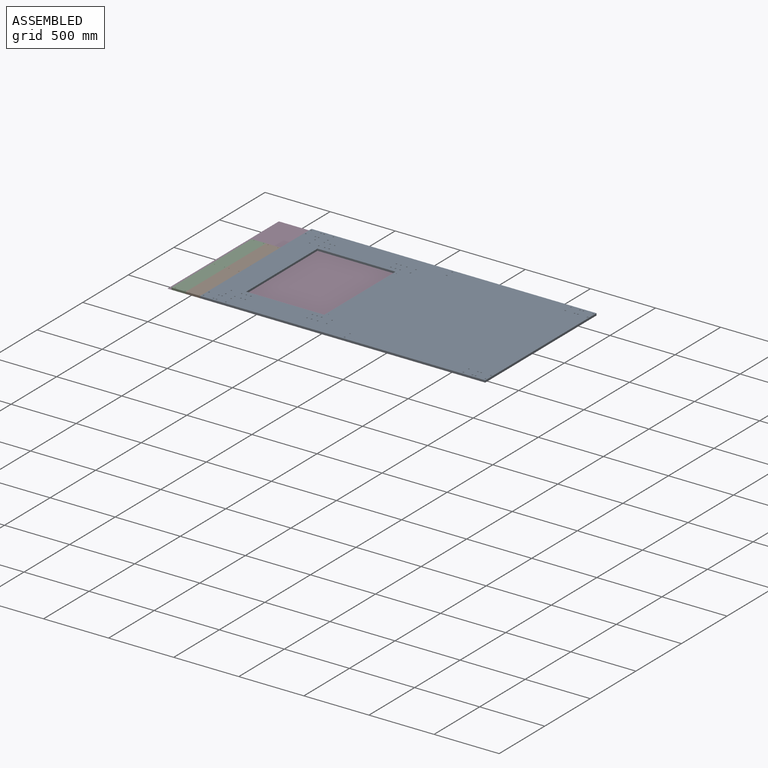
[diagram: assembled view]
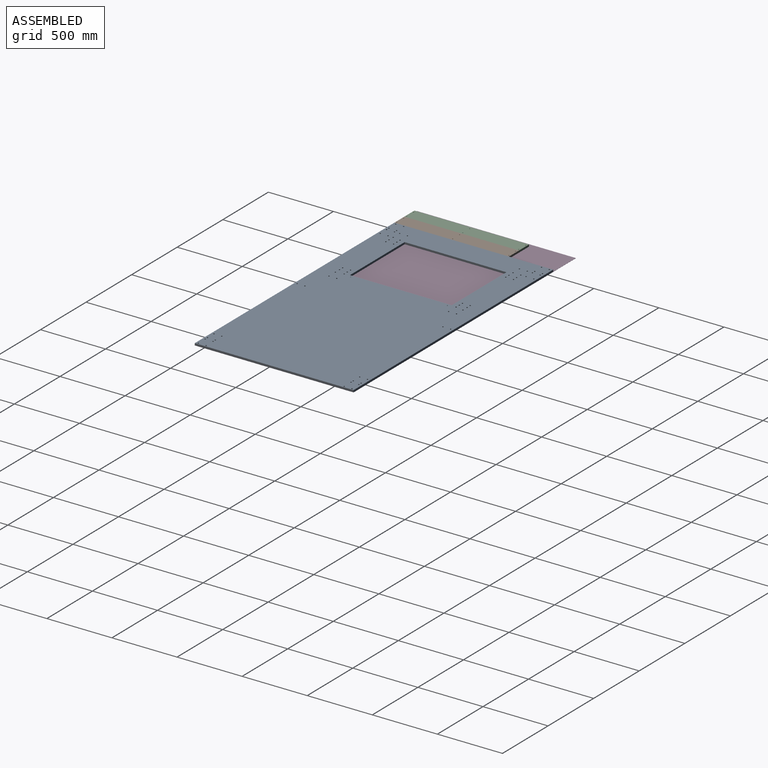
[diagram: assembled view, second angle]
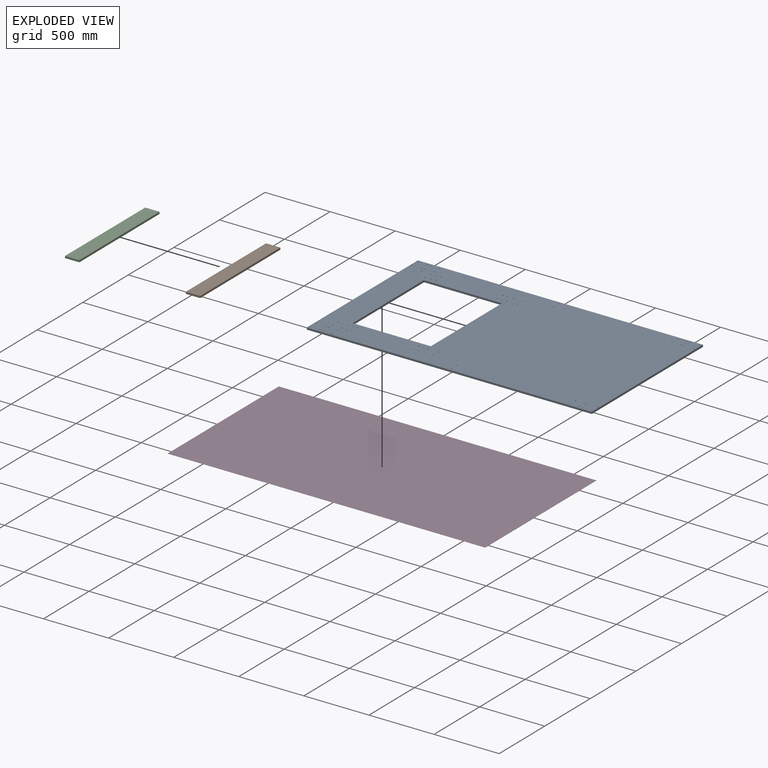
[diagram: exploded view]
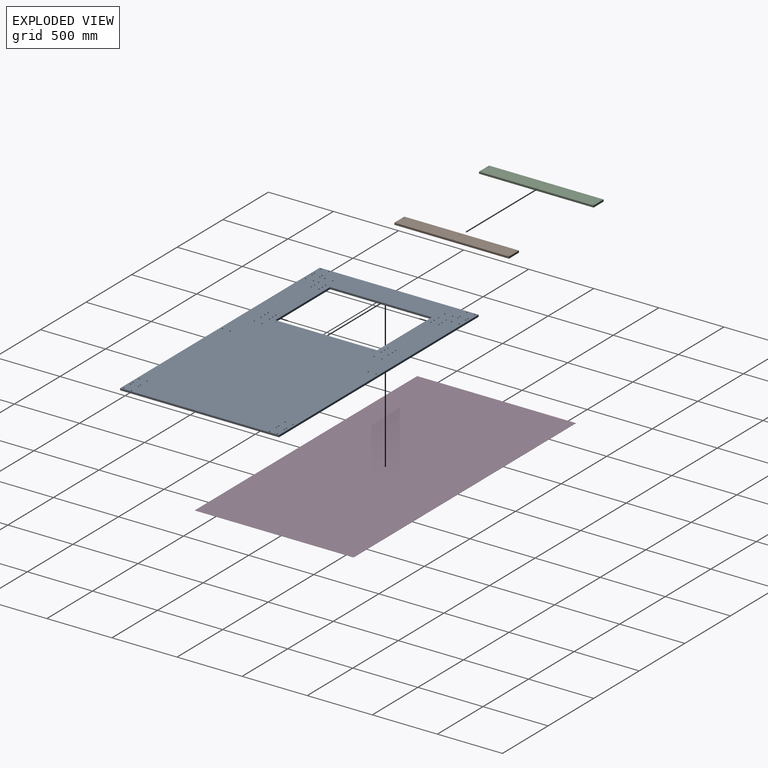
[diagram: exploded view, second angle]
ASSEMBLY  parts=4 mates=3
PART A: 80 faces, bbox 1220x15x2190 mm
  f0: plane 1220x15mm, normal (0,0,-1), area 18300mm2, adj f1,f77,f78,f79
  f1: plane 2190x15mm, normal (1,0,0), area 32850mm2, adj f0,f2,f78,f79
  f2: plane 1220x15mm, normal (0,0,1), area 18300mm2, adj f1,f77,f78,f79
  f3: plane 600x15mm, normal (-1,0,0), area 9000mm2, adj f4,f76,f78,f79
  f4: plane 782x15mm, normal (0,0,1), area 11730mm2, adj f3,f5,f78,f79
  f5: plane 600x15mm, normal (1,0,0), area 9000mm2, adj f4,f76,f78,f79
  f6: cylinder r=5mm len=15mm, axis (0,1,0), area 471.2mm2, adj f78,f79
  f7: cylinder r=5mm len=15mm, axis (0,1,0), area 471.2mm2, adj f78,f79
  f8: cylinder r=5mm len=15mm, axis (0,1,0), area 471.2mm2, adj f78,f79
  f9: cylinder r=5mm len=15mm, axis (0,1,0), area 471.2mm2, adj f78,f79
  f10: cylinder r=5mm len=15mm, axis (0,1,0), area 471.2mm2, adj f78,f79
  f11: cylinder r=5mm len=15mm, axis (0,1,0), area 471.2mm2, adj f78,f79
  f12: cylinder r=5mm len=15mm, axis (0,1,0), area 471.2mm2, adj f78,f79
  f13: cylinder r=5mm len=15mm, axis (0,1,0), area 471.2mm2, adj f78,f79
  f14: cylinder r=5mm len=15mm, axis (0,1,0), area 471.2mm2, adj f78,f79
  f15: cylinder r=5mm len=15mm, axis (0,1,0), area 471.2mm2, adj f78,f79
  f16: cylinder r=3mm len=15mm, axis (0,1,0), area 282.7mm2, adj f78,f79
  f17: cylinder r=5mm len=15mm, axis (0,1,0), area 471.2mm2, adj f78,f79
  f18: cylinder r=5mm len=15mm, axis (0,1,0), area 471.2mm2, adj f78,f79
  f19: cylinder r=5mm len=15mm, axis (0,1,0), area 471.2mm2, adj f78,f79
  f20: cylinder r=5mm len=15mm, axis (0,1,0), area 471.2mm2, adj f78,f79
  f21: cylinder r=5mm len=15mm, axis (0,1,0), area 471.2mm2, adj f78,f79
  f22: cylinder r=5mm len=15mm, axis (0,1,0), area 471.2mm2, adj f78,f79
  f23: cylinder r=5mm len=15mm, axis (0,1,0), area 471.2mm2, adj f78,f79
  f24: cylinder r=5mm len=15mm, axis (0,1,0), area 471.2mm2, adj f78,f79
  f25: cylinder r=5mm len=15mm, axis (0,1,0), area 471.2mm2, adj f78,f79
  f26: cylinder r=5mm len=15mm, axis (0,1,0), area 471.2mm2, adj f78,f79
  f27: cylinder r=5mm len=15mm, axis (0,1,0), area 471.2mm2, adj f78,f79
  f28: cylinder r=5mm len=15mm, axis (0,1,0), area 471.2mm2, adj f78,f79
  f29: cylinder r=5mm len=15mm, axis (0,1,0), area 471.2mm2, adj f78,f79
  f30: cylinder r=5mm len=15mm, axis (0,1,0), area 471.2mm2, adj f78,f79
  f31: cylinder r=5mm len=15mm, axis (0,1,0), area 471.2mm2, adj f78,f79
  f32: cylinder r=5mm len=15mm, axis (0,1,0), area 471.2mm2, adj f78,f79
  f33: cylinder r=5mm len=15mm, axis (0,1,0), area 471.2mm2, adj f78,f79
  f34: cylinder r=5mm len=15mm, axis (0,1,0), area 471.2mm2, adj f78,f79
  f35: cylinder r=5mm len=15mm, axis (0,1,0), area 471.2mm2, adj f78,f79
  f36: cylinder r=5mm len=15mm, axis (0,1,0), area 471.2mm2, adj f78,f79
  f37: cylinder r=5mm len=15mm, axis (0,1,0), area 471.2mm2, adj f78,f79
  f38: cylinder r=5mm len=15mm, axis (0,1,0), area 471.2mm2, adj f78,f79
  f39: cylinder r=5mm len=15mm, axis (0,1,0), area 471.2mm2, adj f78,f79
  f40: cylinder r=5mm len=15mm, axis (0,1,0), area 471.2mm2, adj f78,f79
  f41: cylinder r=5mm len=15mm, axis (0,1,0), area 471.2mm2, adj f78,f79
  f42: cylinder r=5mm len=15mm, axis (0,1,0), area 471.2mm2, adj f78,f79
  f43: cylinder r=5mm len=15mm, axis (0,1,0), area 471.2mm2, adj f78,f79
  f44: cylinder r=5mm len=15mm, axis (0,1,0), area 471.2mm2, adj f78,f79
  f45: cylinder r=5mm len=15mm, axis (0,1,0), area 471.2mm2, adj f78,f79
  f46: cylinder r=5mm len=15mm, axis (0,1,0), area 471.2mm2, adj f78,f79
  f47: cylinder r=5mm len=15mm, axis (0,1,0), area 471.2mm2, adj f78,f79
  f48: cylinder r=5mm len=15mm, axis (0,1,0), area 471.2mm2, adj f78,f79
  f49: cylinder r=3mm len=15mm, axis (0,1,0), area 282.7mm2, adj f78,f79
  f50: cylinder r=5mm len=15mm, axis (0,1,0), area 471.2mm2, adj f78,f79
  f51: cylinder r=5mm len=15mm, axis (0,1,0), area 471.2mm2, adj f78,f79
  f52: cylinder r=5mm len=15mm, axis (0,1,0), area 471.2mm2, adj f78,f79
  f53: cylinder r=5mm len=15mm, axis (0,1,0), area 471.2mm2, adj f78,f79
  f54: cylinder r=5mm len=15mm, axis (0,1,0), area 471.2mm2, adj f78,f79
  f55: cylinder r=5mm len=15mm, axis (0,1,0), area 471.2mm2, adj f78,f79
  f56: cylinder r=5mm len=15mm, axis (0,1,0), area 471.2mm2, adj f78,f79
  f57: cylinder r=5mm len=15mm, axis (0,1,0), area 471.2mm2, adj f78,f79
  f58: cylinder r=5mm len=15mm, axis (0,1,0), area 471.2mm2, adj f78,f79
  f59: cylinder r=5mm len=15mm, axis (0,1,0), area 471.2mm2, adj f78,f79
  f60: cylinder r=5mm len=15mm, axis (0,1,0), area 471.2mm2, adj f78,f79
  f61: cylinder r=5mm len=15mm, axis (0,1,0), area 471.2mm2, adj f78,f79
  f62: cylinder r=5mm len=15mm, axis (0,1,0), area 471.2mm2, adj f78,f79
  f63: cylinder r=5mm len=15mm, axis (0,1,0), area 471.2mm2, adj f78,f79
  f64: cylinder r=5mm len=15mm, axis (0,1,0), area 471.2mm2, adj f78,f79
  f65: cylinder r=5mm len=15mm, axis (0,1,0), area 471.2mm2, adj f78,f79
  f66: cylinder r=5mm len=15mm, axis (0,1,0), area 471.2mm2, adj f78,f79
  f67: cylinder r=5mm len=15mm, axis (0,1,0), area 471.2mm2, adj f78,f79
  f68: cylinder r=5mm len=15mm, axis (0,1,0), area 471.2mm2, adj f78,f79
  f69: cylinder r=5mm len=15mm, axis (0,1,0), area 471.2mm2, adj f78,f79
  f70: cylinder r=5mm len=15mm, axis (0,1,0), area 471.2mm2, adj f78,f79
  f71: cylinder r=5mm len=15mm, axis (0,1,0), area 471.2mm2, adj f78,f79
  f72: cylinder r=5mm len=15mm, axis (0,1,0), area 471.2mm2, adj f78,f79
  f73: cylinder r=5mm len=15mm, axis (0,1,0), area 471.2mm2, adj f78,f79
  f74: cylinder r=5mm len=15mm, axis (0,1,0), area 471.2mm2, adj f78,f79
  f75: cylinder r=5mm len=15mm, axis (0,1,0), area 471.2mm2, adj f78,f79
  f76: plane 782x15mm, normal (0,0,-1), area 11730mm2, adj f3,f5,f78,f79
  f77: plane 2190x15mm, normal (-1,0,0), area 32850mm2, adj f0,f2,f78,f79
  f78: plane 2190x1220mm, normal (0,-1,0), area 2197201.2mm2, adj f0,f1,f2,f3,f4,f5,f6,f7
  f79: plane 2190x1220mm, normal (0,1,0), area 2197201.2mm2, adj f0,f1,f2,f3,f4,f5,f6,f7
PART B: 12 faces, bbox 880x15x110 mm
  f0: plane 880x15mm, normal (0,0,1), area 13200mm2, adj f1,f8,f10,f11
  f1: plane 110x15mm, normal (-1,0,0), area 1650mm2, adj f0,f2,f10,f11
  f2: plane 880x15mm, normal (0,0,-1), area 13200mm2, adj f1,f8,f10,f11
  f3: cylinder r=3mm len=15mm, axis (0,1,0), area 282.7mm2, adj f10,f11
  f4: cylinder r=3mm len=15mm, axis (0,1,0), area 282.7mm2, adj f10,f11
  f5: cylinder r=3mm len=15mm, axis (0,1,0), area 282.7mm2, adj f10,f11
  f6: cylinder r=3mm len=15mm, axis (0,1,0), area 282.7mm2, adj f10,f11
  f7: cylinder r=3mm len=15mm, axis (0,1,0), area 282.7mm2, adj f10,f11
  f8: plane 110x15mm, normal (1,0,0), area 1650mm2, adj f0,f2,f10,f11
  f9: cylinder r=3mm len=15mm, axis (0,1,0), area 282.7mm2, adj f10,f11
  f10: plane 880x110mm, normal (0,-1,0), area 96630.4mm2, adj f0,f1,f2,f3,f4,f5,f6,f7
  f11: plane 880x110mm, normal (0,1,0), area 96630.4mm2, adj f0,f1,f2,f3,f4,f5,f6,f7
PART C: same geometry as B
PART D: 6 faces, bbox 2440x1220x1 mm
  f0: plane 1220x1mm, normal (-1,0,0), area 1220mm2, adj f1,f3,f4,f5
  f1: plane 2440x1mm, normal (0,-1,0), area 2440mm2, adj f0,f2,f4,f5
  f2: plane 1220x1mm, normal (1,0,0), area 1220mm2, adj f1,f3,f4,f5
  f3: plane 2440x1mm, normal (0,1,0), area 2440mm2, adj f0,f2,f4,f5
  f4: plane 2440x1220mm, normal (0,0,1), area 2976800mm2, adj f0,f1,f2,f3
  f5: plane 2440x1220mm, normal (0,0,-1), area 2976800mm2, adj f0,f1,f2,f3
PLACE A rot(axis=(0.58,-0.58,-0.58),120deg) t=(125,-9,8.5)mm
PLACE B rot(axis=(-0.58,-0.58,0.58),120deg) t=(-1025,-170,8.5)mm
PLACE C rot(axis=(-0.58,-0.58,0.58),120deg) t=(-1135,-170,8.5)mm
PLACE D at identity fixed
MATE fastened A.f78 <-> D.f4  axis (0,0,-1) through (1220,610,1)mm
MATE fastened B.f2 <-> A.f2  axis (1,0,0) through (-970,-610,8.5)mm
MATE fastened C.f2 <-> B.f0  axis (1,0,0) through (-1080,-170,8.5)mm
